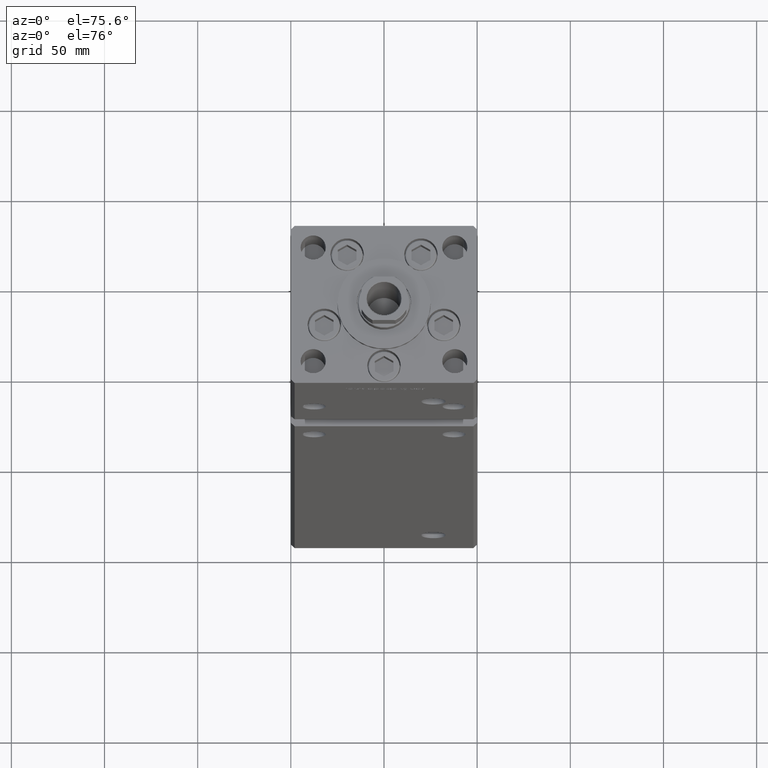
[diagram: clean part render]
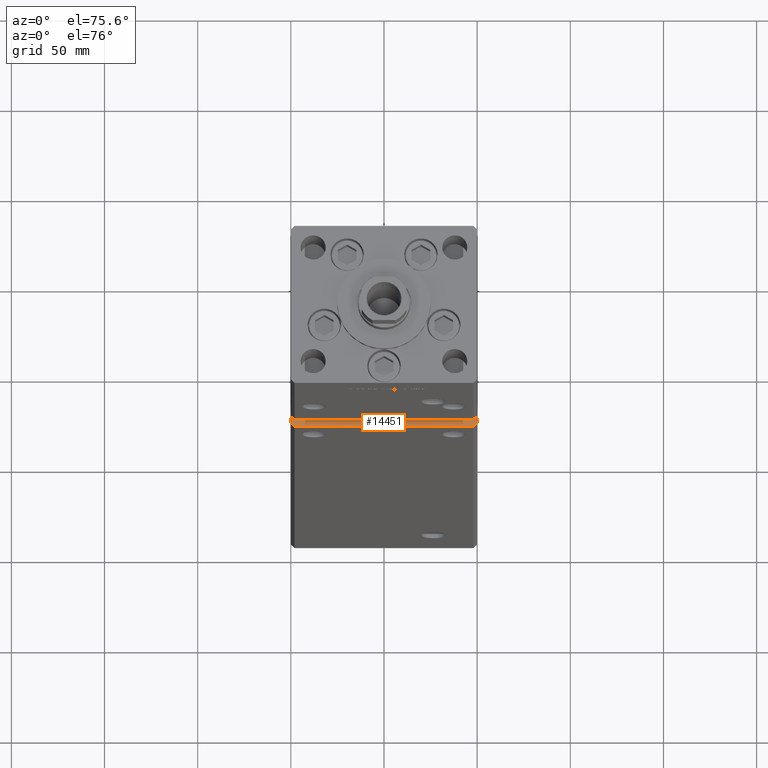
[diagram: same view with one face highlighted and labeled with its STEP entity id]
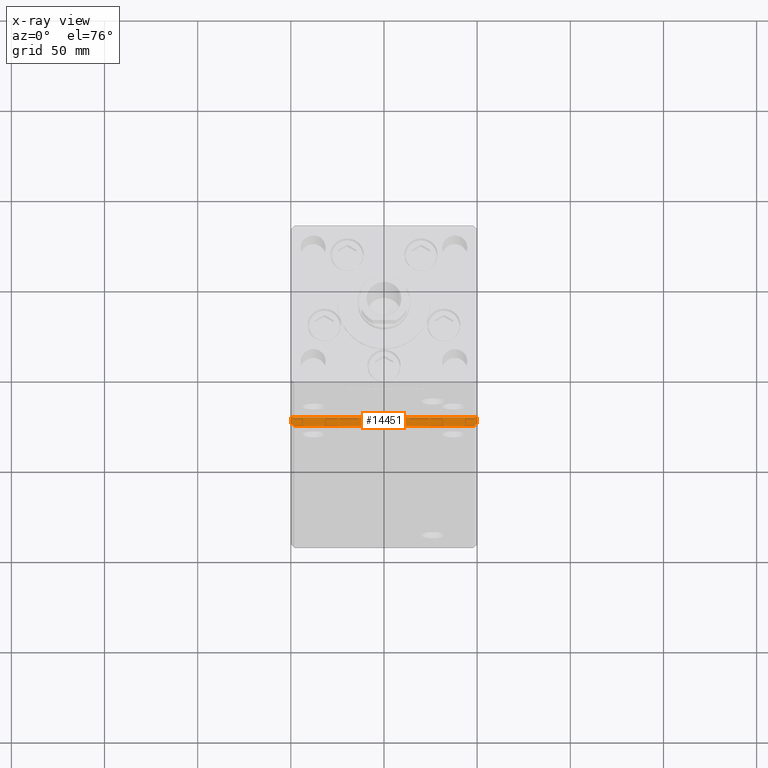
[diagram: x-ray of the same camera — body ghosted, the highlighted face saturated]
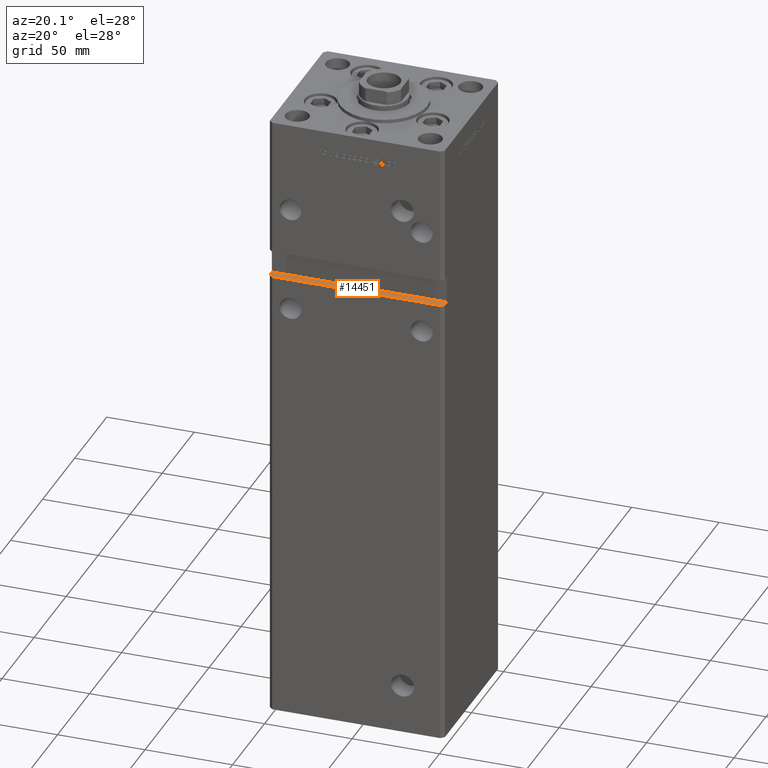
[diagram: same view with one face highlighted and labeled with its STEP entity id]
A machine part, auxiliary view. The second image highlights one B-rep face of the part: STEP entity #14451.
The next image is the same camera in x-ray: the body ghosted, the highlighted face saturated — about 0% of this face is hidden behind the body in this view.
A second angle (auxiliary view) of the same face is appended — the face is thin or edge-on in the first view.
In plain terms, the highlighted planar face has unit normal (0, 0, -1).
Its self-contained STEP definition (entity closure, byte-faithful):
#640 = DIRECTION ( 'NONE',  ( -1.000000000000000000, 0.000000000000000000, -0.000000000000000000 ) ) ;
#1097 = CARTESIAN_POINT ( 'NONE',  ( 49.99999999999998579, -38.49999999999999289, 244.0000000000000000 ) ) ;
#1167 = FACE_OUTER_BOUND ( 'NONE', #15778, .T. ) ;
#3018 = EDGE_CURVE ( 'NONE', #13167, #21309, #9700, .T. ) ;
#5278 = VERTEX_POINT ( 'NONE', #19647 ) ;
#7089 = VERTEX_POINT ( 'NONE', #15447 ) ;
#7174 = LINE ( 'NONE', #39961, #10692 ) ;
#9117 = EDGE_CURVE ( 'NONE', #26549, #31365, #42208, .T. ) ;
#9222 = PLANE ( 'NONE',  #39981 ) ;
#9700 = LINE ( 'NONE', #50051, #33631 ) ;
#9734 = CARTESIAN_POINT ( 'NONE',  ( -49.99999999999998579, -38.50000000000000000, 244.0000000000000000 ) ) ;
#10692 = VECTOR ( 'NONE', #23282, 1000.000000000000114 ) ;
#10827 = EDGE_CURVE ( 'NONE', #7089, #5278, #33680, .T. ) ;
#11605 = EDGE_CURVE ( 'NONE', #13167, #5278, #7174, .T. ) ;
#11847 = ORIENTED_EDGE ( 'NONE', *, *, #9117, .F. ) ;
#12166 = LINE ( 'NONE', #33394, #34566 ) ;
#13167 = VERTEX_POINT ( 'NONE', #38172 ) ;
#13929 = CARTESIAN_POINT ( 'NONE',  ( 49.99999999999998579, -41.49999999999999289, 244.0000000000000000 ) ) ;
#14451 = ADVANCED_FACE ( 'NONE', ( #1167 ), #9222, .F. ) ;
#15447 = CARTESIAN_POINT ( 'NONE',  ( -49.99999999999998579, -38.50000000000000000, 244.0000000000000000 ) ) ;
#15778 = EDGE_LOOP ( 'NONE', ( #16216, #31355, #11847, #22543, #19779, #16928 ) ) ;
#15986 = VECTOR ( 'NONE', #53040, 1000.000000000000114 ) ;
#16216 = ORIENTED_EDGE ( 'NONE', *, *, #3018, .T. ) ;
#16928 = ORIENTED_EDGE ( 'NONE', *, *, #11605, .F. ) ;
#17240 = CARTESIAN_POINT ( 'NONE',  ( 47.99999999999998579, -43.50000000000000000, 244.0000000000000000 ) ) ;
#17280 = CARTESIAN_POINT ( 'NONE',  ( -49.99999999999998579, -38.50000000000000000, 244.0000000000000000 ) ) ;
#17547 = DIRECTION ( 'NONE',  ( -0.000000000000000000, -1.000000000000000000, -0.000000000000000000 ) ) ;
#17726 = CARTESIAN_POINT ( 'NONE',  ( 49.99999999999998579, -38.50000000000000000, 244.0000000000000000 ) ) ;
#19647 = CARTESIAN_POINT ( 'NONE',  ( -49.99999999999998579, -41.49999999999999289, 244.0000000000000000 ) ) ;
#19779 = ORIENTED_EDGE ( 'NONE', *, *, #10827, .T. ) ;
#21309 = VERTEX_POINT ( 'NONE', #17240 ) ;
#22543 = ORIENTED_EDGE ( 'NONE', *, *, #25385, .F. ) ;
#22594 = VECTOR ( 'NONE', #34117, 1000.000000000000000 ) ;
#23282 = DIRECTION ( 'NONE',  ( -0.7071067811865474617, 0.7071067811865474617, 0.000000000000000000 ) ) ;
#25385 = EDGE_CURVE ( 'NONE', #7089, #26549, #12166, .T. ) ;
#26129 = DIRECTION ( 'NONE',  ( 0.000000000000000000, 0.000000000000000000, -1.000000000000000000 ) ) ;
#26549 = VERTEX_POINT ( 'NONE', #1097 ) ;
#27526 = LINE ( 'NONE', #48749, #15986 ) ;
#31355 = ORIENTED_EDGE ( 'NONE', *, *, #38956, .T. ) ;
#31365 = VERTEX_POINT ( 'NONE', #13929 ) ;
#33394 = CARTESIAN_POINT ( 'NONE',  ( -49.99999999999998579, -38.50000000000000000, 244.0000000000000000 ) ) ;
#33631 = VECTOR ( 'NONE', #38200, 1000.000000000000000 ) ;
#33680 = LINE ( 'NONE', #17280, #51055 ) ;
#34117 = DIRECTION ( 'NONE',  ( -0.000000000000000000, -1.000000000000000000, -0.000000000000000000 ) ) ;
#34566 = VECTOR ( 'NONE', #37696, 1000.000000000000000 ) ;
#37696 = DIRECTION ( 'NONE',  ( 1.000000000000000000, 0.000000000000000000, 0.000000000000000000 ) ) ;
#38172 = CARTESIAN_POINT ( 'NONE',  ( -47.99999999999998579, -43.50000000000000000, 244.0000000000000000 ) ) ;
#38200 = DIRECTION ( 'NONE',  ( 1.000000000000000000, 0.000000000000000000, 0.000000000000000000 ) ) ;
#38956 = EDGE_CURVE ( 'NONE', #21309, #31365, #27526, .T. ) ;
#39961 = CARTESIAN_POINT ( 'NONE',  ( -49.99999999999998579, -41.49999999999999289, 244.0000000000000000 ) ) ;
#39981 = AXIS2_PLACEMENT_3D ( 'NONE', #9734, #26129, #640 ) ;
#42208 = LINE ( 'NONE', #17726, #22594 ) ;
#48749 = CARTESIAN_POINT ( 'NONE',  ( 49.99999999999998579, -41.49999999999999289, 244.0000000000000000 ) ) ;
#50051 = CARTESIAN_POINT ( 'NONE',  ( -49.99999999999998579, -43.50000000000000000, 244.0000000000000000 ) ) ;
#51055 = VECTOR ( 'NONE', #17547, 1000.000000000000000 ) ;
#53040 = DIRECTION ( 'NONE',  ( 0.7071067811865474617, 0.7071067811865474617, 0.000000000000000000 ) ) ;